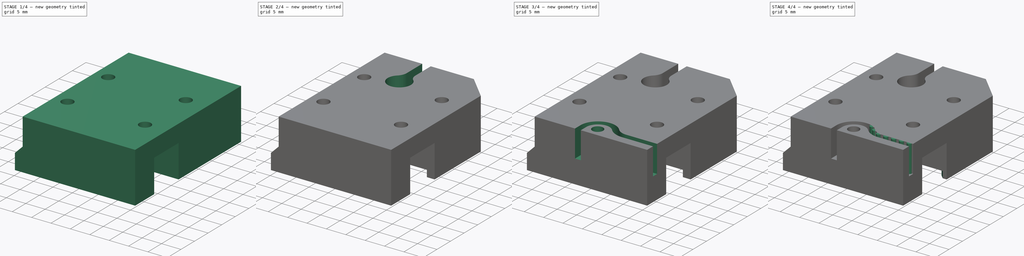
[diagram: build sequence overview — one tinted view per stage of 4, left to right]
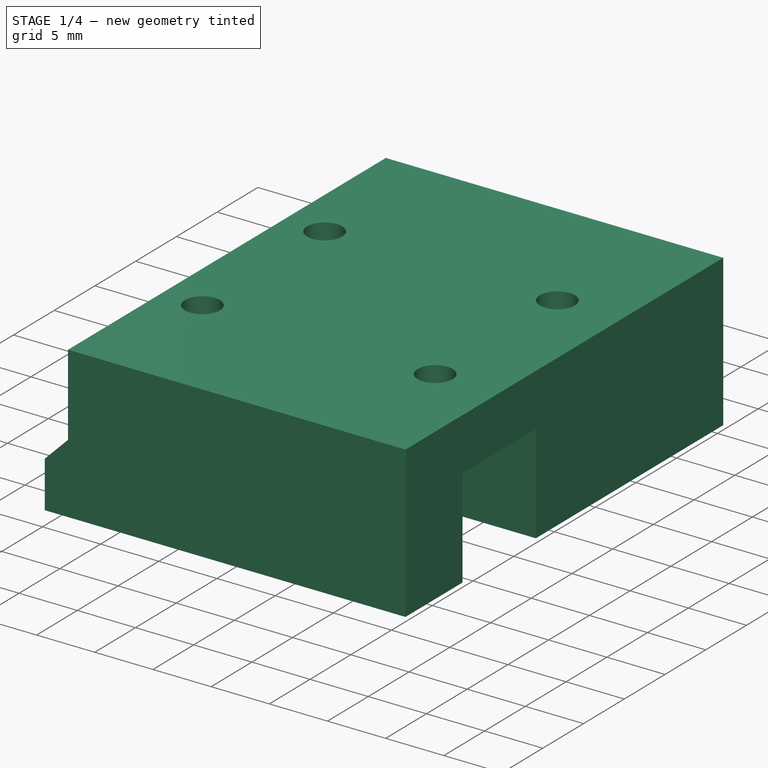
[diagram: stage 1 of 4 — iso view after this stage's code; geometry added in this stage tinted green]
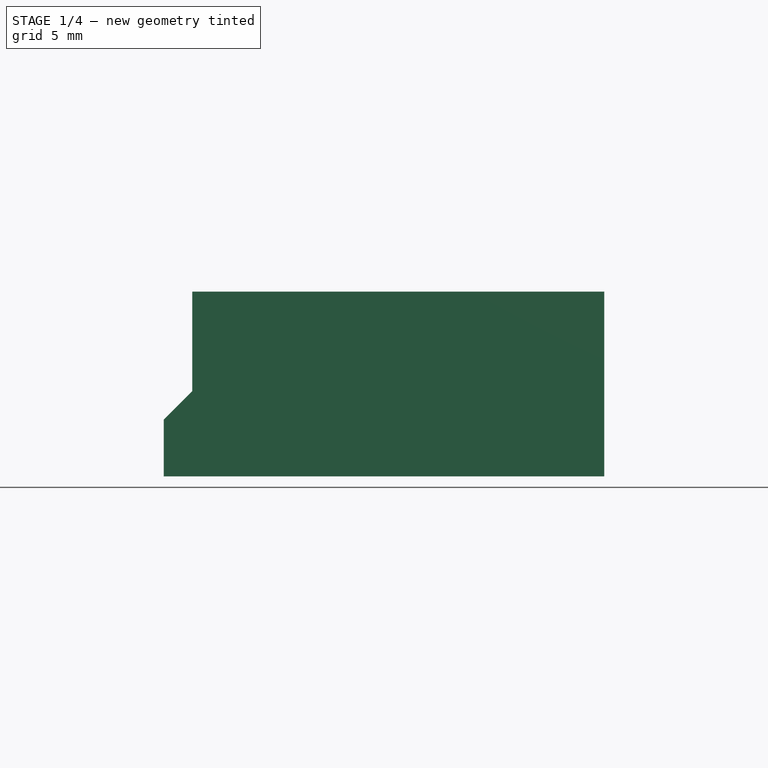
[diagram: stage 1 of 4 — front view after this stage's code; geometry added in this stage tinted green]
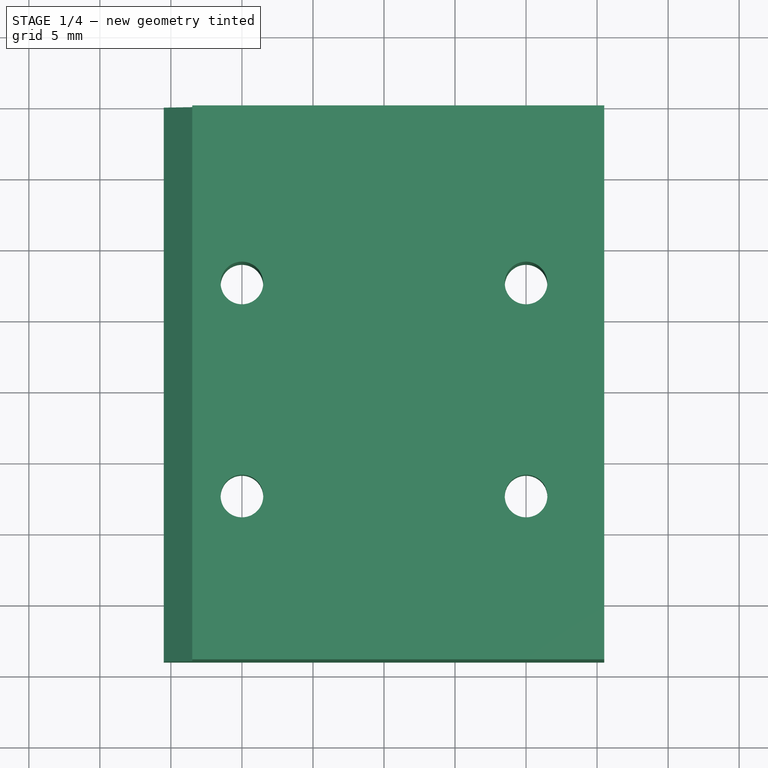
[diagram: stage 1 of 4 — top view after this stage's code; geometry added in this stage tinted green]
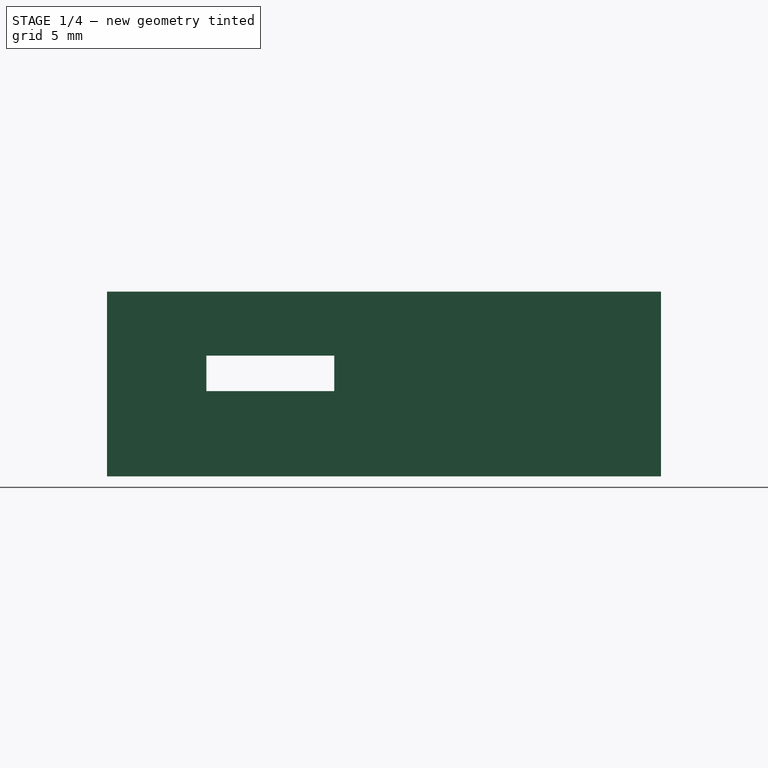
[diagram: stage 1 of 4 — right view after this stage's code; geometry added in this stage tinted green]
FCSTD DOCUMENT  (FreeCAD 0.19R)
Label: Yjoint_bolted
License: All rights reserved
LicenseURL: http://en.wikipedia.org/wiki/All_rights_reserved
objects: Sketcher::SketchObject×13, PartDesign::Pocket×10, PartDesign::Pad×3, PartDesign::Chamfer×1, PartDesign::Body×1
note: 42 computed .brp shape members not serialized (recipe doc carries the construction recipe); baked Part::Feature solids carry a one-line shape summary decoded from their .brp

FEATURE [Sketcher::SketchObject] Sketch
  FullyConstrained = false
  MapMode = 5
  Support = -> [XY_Plane]
  sketch-geometry (9):
    g0: LineSegment StartX=-15.5 StartY=20 StartZ=0 EndX=15.5 EndY=20 EndZ=0
    g1: LineSegment StartX=15.5 StartY=20 StartZ=0 EndX=15.5 EndY=-19 EndZ=0
    g2: LineSegment StartX=15.5 StartY=-19 StartZ=0 EndX=-15.5 EndY=-19 EndZ=0
    g3: LineSegment StartX=-15.5 StartY=-19 StartZ=0 EndX=-15.5 EndY=20 EndZ=0
    g4: LineSegment StartX=-37.8866 StartY=-3 StartZ=0 EndX=43.1927 EndY=-3 EndZ=0
    g5: LineSegment StartX=43.1927 StartY=-3 StartZ=0 EndX=43.1927 EndY=-12 EndZ=0
    g6: LineSegment StartX=43.1927 StartY=-12 StartZ=0 EndX=-37.8866 EndY=-12 EndZ=0
    g7: LineSegment StartX=-37.8866 StartY=-12 StartZ=0 EndX=-37.8866 EndY=-3 EndZ=0
    g8: LineSegment StartX=-54.8094 StartY=-7.5 StartZ=0 EndX=51.9088 EndY=-7.5 EndZ=0
  constraints (22):
    c: Coincident(g0,g1)
    c: Coincident(g1,g2)
    c: Coincident(g2,g3)
    c: Coincident(g3,g0)
    c: Horizontal(g2)
    c: Vertical(g1)
    c: Vertical(g3)
    c: Distance(g2) = 31
    c: Coincident(g4,g5)
    c: Coincident(g5,g6)
    c: Coincident(g6,g7)
    c: Coincident(g7,g4)
    c: Horizontal(g4)
    c: Horizontal(g6)
    c: Vertical(g5)
    c: Vertical(g7)
    c: Symmetric(g5,g4,g8)
    c: DistanceY(g8) = -7.5
    c: Distance(g5) = 9
    c: Distance(g0,g4) = 23
    c: Symmetric(g0,g0,g-2)
    c: DistanceY(g1) = -19
FEATURE [PartDesign::Pad] Pad
  Direction = (1,1,1)
  Length = 13
  Length2 = 100
  Profile = -> Sketch
  Type = 0
FEATURE [Sketcher::SketchObject] Sketch001  label="beltreleif"
  FullyConstrained = false
  MapMode = 5
  Placement = pos=(0,-19,0) rot=(1,0,0;1.5708rad)
  Support = -> [Pad]
  sketch-geometry (3):
    g0: LineSegment StartX=-23.4183 StartY=-3.91832 StartZ=0 EndX=-13.5 EndY=6 EndZ=0
    g1: LineSegment StartX=-13.5 StartY=6 StartZ=0 EndX=-13.5 EndY=30.99 EndZ=0
    g2: LineSegment StartX=-13.5 StartY=30.99 StartZ=0 EndX=-23.4183 EndY=-3.91832 EndZ=0
  constraints (8):
    c: Coincident(g0,g1)
    c: Vertical(g1)
    c: Coincident(g1,g2)
    c: Coincident(g2,g0)
    c: Angle(g0) = 0.785398
    c: DistanceX(g0) = -13.5
    c: Distance(g2) = 36.29
    c: DistanceY(g0) = 6
FEATURE [PartDesign::Pocket] Pocket
  BaseFeature = -> Pad
  Length = 5
  Length2 = 100
  Profile = -> Sketch001
  Type = 1
FEATURE [Sketcher::SketchObject] Sketch002  label="RailPocket"
  FullyConstrained = false
  MapMode = 5
  Placement = pos=(15.5,0,0) rot=(0.57735,0.57735,0.57735;2.0944rad)
  Support = -> [Pocket]
  sketch-geometry (5):
    g0: LineSegment StartX=-12 StartY=8.5 StartZ=0 EndX=-3 EndY=8.5 EndZ=0
    g1: LineSegment StartX=-3 StartY=8.5 StartZ=0 EndX=-3 EndY=-7.81784 EndZ=0
    g2: LineSegment StartX=-3 StartY=-7.81784 StartZ=0 EndX=-12 EndY=-7.81784 EndZ=0
    g3: LineSegment StartX=-12 StartY=-7.81784 StartZ=0 EndX=-12 EndY=8.5 EndZ=0
    g4: LineSegment StartX=-7.5 StartY=9.53875 StartZ=0 EndX=-7.5 EndY=-20.3605 EndZ=0
  constraints (12):
    c: Coincident(g0,g1)
    c: Coincident(g1,g2)
    c: Coincident(g2,g3)
    c: Coincident(g3,g0)
    c: Horizontal(g0)
    c: Horizontal(g2)
    c: Vertical(g1)
    c: Vertical(g3)
    c: Distance(g0) = 9
    c: Symmetric(g0,g0,g4)
    c: DistanceX(g4) = -7.5
    c: DistanceY(g0) = 8.5
FEATURE [PartDesign::Pocket] Pocket001
  BaseFeature = -> Pocket
  Length = 29
  Length2 = 100
  Profile = -> Sketch002
  Type = 0
FEATURE [Sketcher::SketchObject] Sketch003  label="CarriageBolts"
  FullyConstrained = true
  MapMode = 5
  Placement = pos=(0,0,13) rot=(0,0,1;0rad)
  Support = -> [Pocket001]
  sketch-geometry (4):
    g0: Circle CenterX=10 CenterY=7.5 CenterZ=0 NormalX=0 NormalY=0 NormalZ=1 AngleXU=0 Radius=1.5
    g1: Circle CenterX=-10 CenterY=7.5 CenterZ=0 NormalX=0 NormalY=0 NormalZ=1 AngleXU=0 Radius=1.5
    g2: Circle CenterX=-10 CenterY=-7.5 CenterZ=0 NormalX=0 NormalY=0 NormalZ=1 AngleXU=0 Radius=1.5
    g3: Circle CenterX=10 CenterY=-7.5 CenterZ=0 NormalX=0 NormalY=0 NormalZ=1 AngleXU=0 Radius=1.5
  constraints (9):
    c: DistanceY(g0) = 7.5
    c: DistanceX(g0) = 10
    c: Symmetric(g1,g0,g-2)
    c: Symmetric(g0,g2,g-1)
    c: Symmetric(g1,g3,g-1)
    c: Diameter(g0) = 3
    c: Equal(g0,g1)
    c: Equal(g0,g2)
    c: Equal(g0,g3)
FEATURE [PartDesign::Pocket] Pocket002
  BaseFeature = -> Pocket001
  Length = 5
  Length2 = 100
  Profile = -> Sketch003
  Type = 1
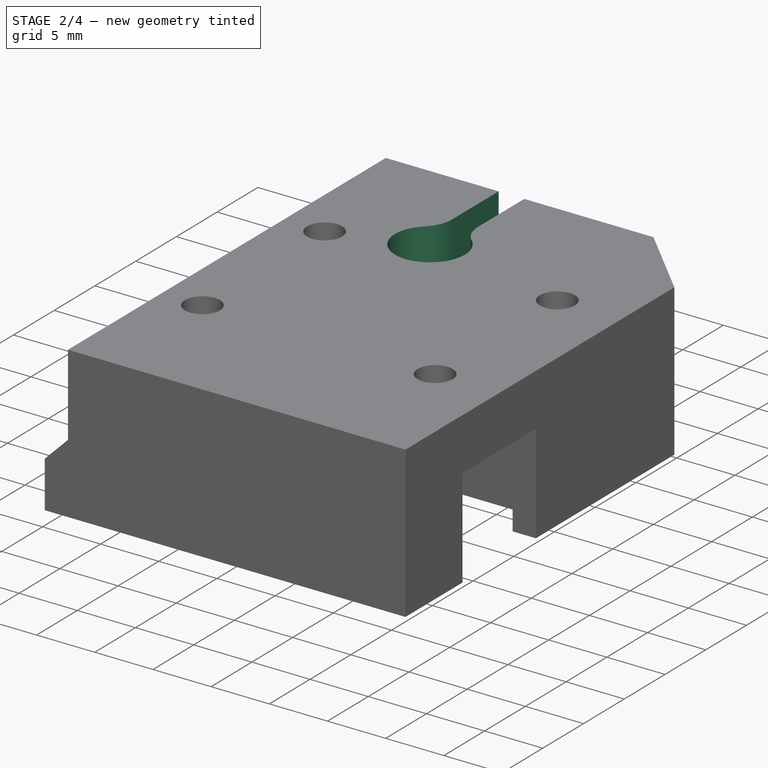
[diagram: stage 2 of 4 — iso view after this stage's code; geometry added in this stage tinted green]
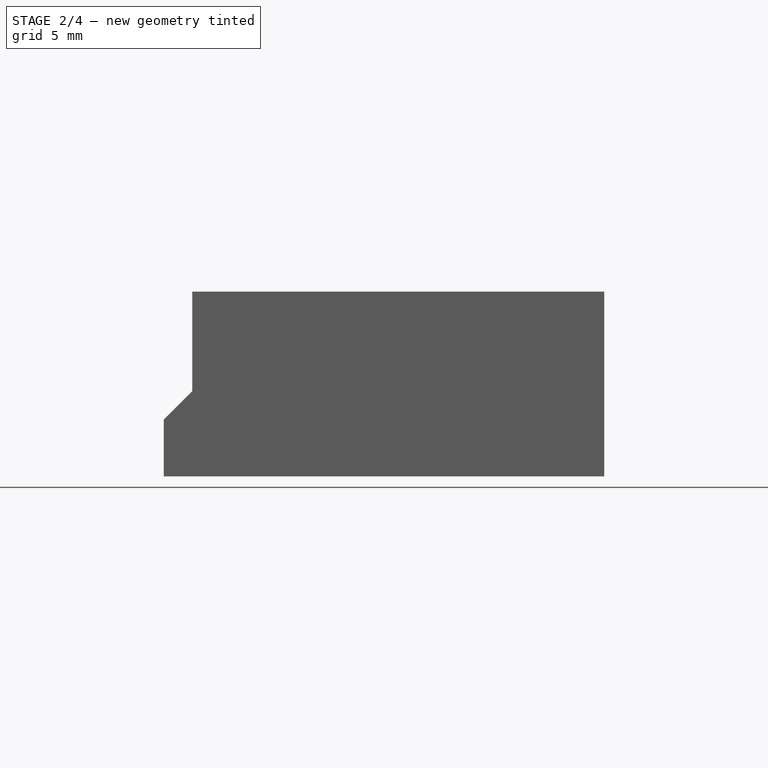
[diagram: stage 2 of 4 — front view after this stage's code; geometry added in this stage tinted green]
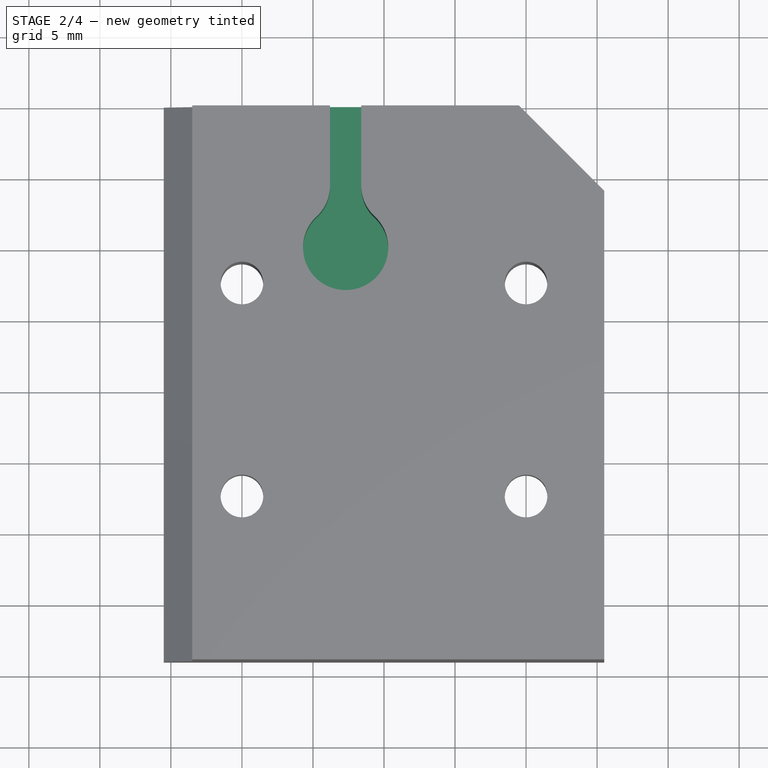
[diagram: stage 2 of 4 — top view after this stage's code; geometry added in this stage tinted green]
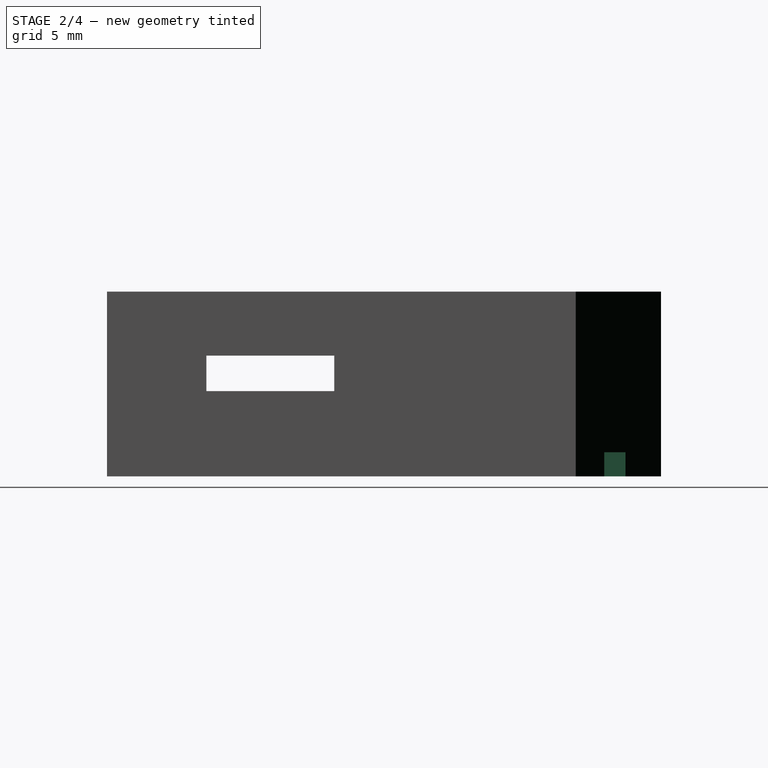
[diagram: stage 2 of 4 — right view after this stage's code; geometry added in this stage tinted green]
FEATURE [Sketcher::SketchObject] Sketch004  label="MotorSideBeltClamp"
  FullyConstrained = false
  MapMode = 5
  Placement = pos=(0,0,13) rot=(0,0,1;0rad)
  Support = -> [Pocket002]
  sketch-geometry (13):
    g0: LineSegment StartX=-3.8 StartY=-19.337 StartZ=0 EndX=-3.8 EndY=-36 EndZ=0
    g1: LineSegment StartX=-3.8 StartY=-36 StartZ=0 EndX=-1.6 EndY=-36 EndZ=0
    g2: LineSegment StartX=-1.6 StartY=-36 StartZ=0 EndX=-1.6 EndY=-19.337 EndZ=0
    g3: ArcOfCircle CenterX=-2.7 CenterY=-15 CenterZ=0 NormalX=0 NormalY=0 NormalZ=1 AngleXU=0 Radius=3 StartAngle=5.45738 EndAngle=10.2506
    g4: ArcOfCircle CenterX=1.3 CenterY=-19.337 CenterZ=0 NormalX=0 NormalY=0 NormalZ=1 AngleXU=0 Radius=2.9 StartAngle=2.31579 EndAngle=3.14159
    g5: ArcOfCircle CenterX=-6.7 CenterY=-19.337 CenterZ=0 NormalX=0 NormalY=0 NormalZ=1 AngleXU=0 Radius=2.9 StartAngle=6e-16 EndAngle=0.825804
    g6: LineSegment StartX=-2.7 StartY=-15 StartZ=0 EndX=-2.7 EndY=-40.8271 EndZ=0
    g7: LineSegment StartX=-3.8 StartY=23.44 StartZ=0 EndX=-1.6 EndY=23.44 EndZ=0
    g8: LineSegment StartX=-1.6 StartY=23.44 StartZ=0 EndX=-1.6 EndY=14.337 EndZ=0
    g9: LineSegment StartX=-3.8 StartY=23.44 StartZ=0 EndX=-3.8 EndY=14.337 EndZ=0
    g10: ArcOfCircle CenterX=-2.7 CenterY=10 CenterZ=0 NormalX=0 NormalY=0 NormalZ=1 AngleXU=0 Radius=3 StartAngle=2.31579 EndAngle=7.10899
    g11: ArcOfCircle CenterX=1.3 CenterY=14.337 CenterZ=0 NormalX=0 NormalY=0 NormalZ=1 AngleXU=0 Radius=2.9 StartAngle=3.14159 EndAngle=3.9674
    g12: ArcOfCircle CenterX=-6.7 CenterY=14.337 CenterZ=0 NormalX=0 NormalY=0 NormalZ=1 AngleXU=0 Radius=2.9 StartAngle=5.45738 EndAngle=6.28319
  constraints (32):
    c: Vertical(g0)
    c: Coincident(g0,g1)
    c: Horizontal(g1)
    c: Coincident(g1,g2)
    c: Tangent(g4,g3) = 1.5708
    c: Tangent(g4,g2) = 1.5708
    c: Tangent(g5,g3) = 1.5708
    c: Tangent(g5,g0) = 1.5708
    c: Coincident(g6,g3)
    c: Symmetric(g1,g0,g6)
    c: Symmetric(g2,g0,g6)
    c: DistanceX(g3) = -2.7
    c: Diameter(g3) = 6
    c: Distance(g4,g5) = 8
    c: Distance(g1) = 2.2
    c: DistanceY(g3) = -15
    c: DistanceY(g1) = -36
    c: Coincident(g7,g8)
    c: Vertical(g8)
    c: Coincident(g7,g9)
    c: Tangent(g11,g10) = 1.5708
    c: Diameter(g10) = 6
    c: Tangent(g11,g8) = -1.5708
    c: Tangent(g12,g10) = 1.5708
    c: Tangent(g12,g9) = 1.5708
    c: Symmetric(g7,g7,g6)
    c: Distance(g7) = 2.2
    c: PointOnObject(g10,g6)
    c: Symmetric(g8,g9,g6)
    c: Distance(g11,g12) = 8
    c: DistanceY(g10) = 10
    c: DistanceY(g7) = 23.44
FEATURE [PartDesign::Pocket] Pocket003
  BaseFeature = -> Pocket002
  Length = 7
  Length2 = 100
  Profile = -> Sketch004
  Type = 0
FEATURE [Sketcher::SketchObject] Sketch005  label="BottomPocket"
  FullyConstrained = true
  MapMode = 5
  Placement = pos=(0,0,0) rot=(1,0,0;3.14159rad)
  Support = -> [Pocket003]
  sketch-geometry (4):
    g0: LineSegment StartX=-13.5 StartY=17.5 StartZ=0 EndX=13.5 EndY=17.5 EndZ=0
    g1: LineSegment StartX=13.5 StartY=17.5 StartZ=0 EndX=13.5 EndY=-17.5 EndZ=0
    g2: LineSegment StartX=13.5 StartY=-17.5 StartZ=0 EndX=-13.5 EndY=-17.5 EndZ=0
    g3: LineSegment StartX=-13.5 StartY=-17.5 StartZ=0 EndX=-13.5 EndY=17.5 EndZ=0
  constraints (11):
    c: Coincident(g0,g1)
    c: Coincident(g1,g2)
    c: Coincident(g2,g3)
    c: Coincident(g3,g0)
    c: Horizontal(g2)
    c: Vertical(g1)
    c: Vertical(g3)
    c: Distance(g0) = 27
    c: Distance(g1) = 35
    c: Symmetric(g0,g2,g-1)
    c: Horizontal(g0)
FEATURE [PartDesign::Pocket] Pocket004
  BaseFeature = -> Pocket003
  Length = 1.7
  Length2 = 100
  Profile = -> Sketch005
  Type = 0
FEATURE [Sketcher::SketchObject] Sketch006  label="CornerClip"
  FullyConstrained = false
  MapMode = 5
  Placement = pos=(0,0,13) rot=(0,0,1;0rad)
  Support = -> [Pocket004]
  sketch-geometry (3):
    g0: LineSegment StartX=1.95516 StartY=27.5448 StartZ=0 EndX=15.5 EndY=14 EndZ=0
    g1: LineSegment StartX=15.5 StartY=14 StartZ=0 EndX=15.5 EndY=27.5448 EndZ=0
    g2: LineSegment StartX=15.5 StartY=27.5448 StartZ=0 EndX=1.95516 EndY=27.5448 EndZ=0
  constraints (8):
    c: Coincident(g0,g1)
    c: Vertical(g1)
    c: Coincident(g1,g2)
    c: Horizontal(g2)
    c: Coincident(g0,g2)
    c: Angle(g0) = -0.785398
    c: DistanceX(g0) = 15.5
    c: DistanceY(g0) = 14
FEATURE [PartDesign::Pocket] Pocket005
  BaseFeature = -> Pocket004
  Length = 5
  Length2 = 100
  Profile = -> Sketch006
  Type = 1
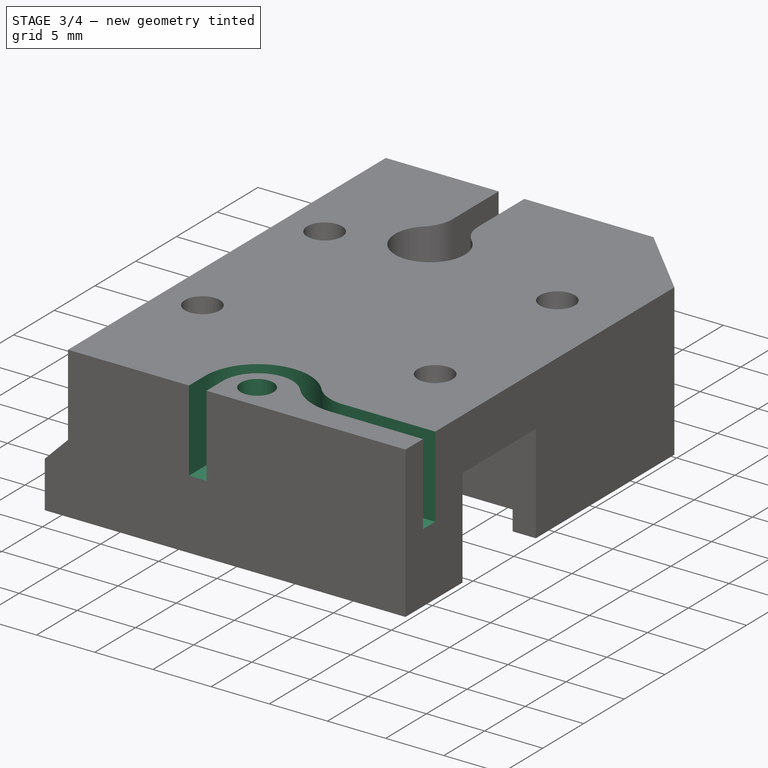
[diagram: stage 3 of 4 — iso view after this stage's code; geometry added in this stage tinted green]
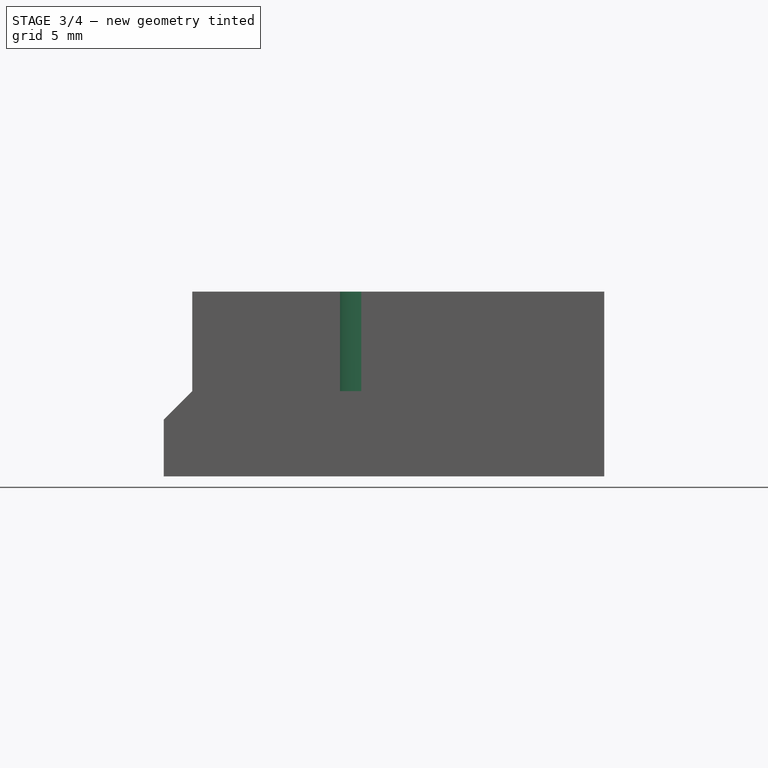
[diagram: stage 3 of 4 — front view after this stage's code; geometry added in this stage tinted green]
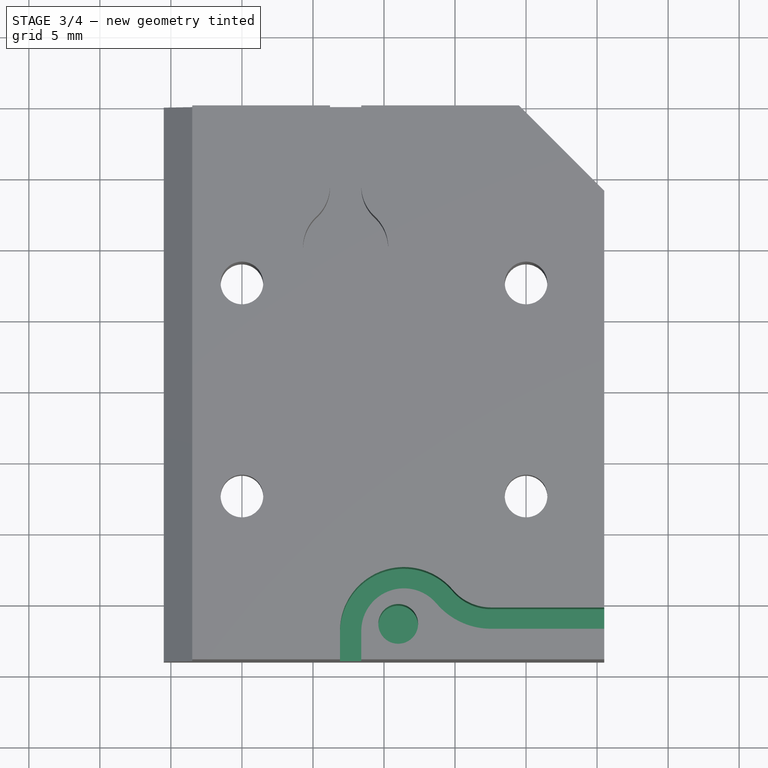
[diagram: stage 3 of 4 — top view after this stage's code; geometry added in this stage tinted green]
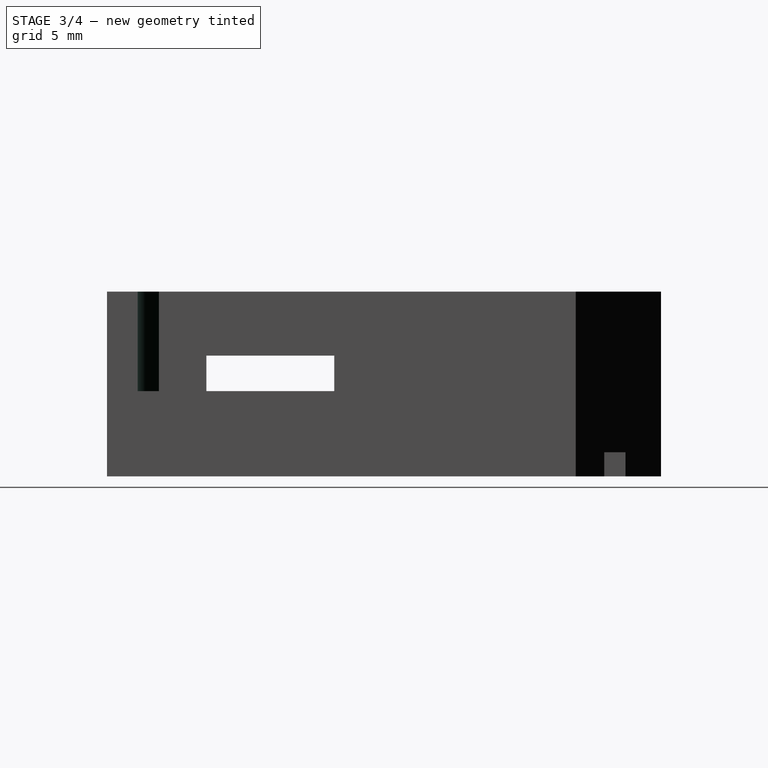
[diagram: stage 3 of 4 — right view after this stage's code; geometry added in this stage tinted green]
FEATURE [Sketcher::SketchObject] Sketch007  label="clampHole"
  ExternalGeometry = -> [Pocket005]
  FullyConstrained = false
  MapMode = 5
  Placement = pos=(0,0,13) rot=(0,0,1;0rad)
  Support = -> [Pocket005]
  sketch-geometry (2):
    g0: Circle CenterX=-2.63724 CenterY=9.92805 CenterZ=0 NormalX=0 NormalY=0 NormalZ=1 AngleXU=0 Radius=1.4
    g1: Circle CenterX=1 CenterY=-16.5 CenterZ=0 NormalX=0 NormalY=0 NormalZ=1 AngleXU=0 Radius=1.4
  constraints (4):
    c: Diameter(g0) = 2.8
    c: Diameter(g1) = 2.8
    c: DistanceY(g1) = -16.5
    c: DistanceX(g1) = 1
FEATURE [Sketcher::SketchObject] Sketch008  label="printFilm"
  FullyConstrained = false
  MapMode = 5
  Placement = pos=(0,0,6) rot=(0,0,1;0rad)
  sketch-geometry (8):
    g0: LineSegment StartX=-7.42355 StartY=14.214 StartZ=0 EndX=2.97442 EndY=14.214 EndZ=0
    g1: LineSegment StartX=2.97442 StartY=14.214 StartZ=0 EndX=2.97442 EndY=6.02841 EndZ=0
    g2: LineSegment StartX=2.97442 StartY=6.02841 StartZ=0 EndX=-7.42355 EndY=6.02841 EndZ=0
    g3: LineSegment StartX=-7.42355 StartY=6.02841 StartZ=0 EndX=-7.42355 EndY=14.214 EndZ=0
    g4: LineSegment StartX=-5.71547 StartY=-12.14 StartZ=0 EndX=6.63722 EndY=-12.14 EndZ=0
    g5: LineSegment StartX=6.63722 StartY=-12.14 StartZ=0 EndX=6.63722 EndY=-18.9745 EndZ=0
    g6: LineSegment StartX=6.63722 StartY=-18.9745 StartZ=0 EndX=-5.71547 EndY=-18.9745 EndZ=0
    g7: LineSegment StartX=-5.71547 StartY=-18.9745 StartZ=0 EndX=-5.71547 EndY=-12.14 EndZ=0
  constraints (16):
    c: Coincident(g0,g1)
    c: Coincident(g1,g2)
    c: Coincident(g2,g3)
    c: Coincident(g3,g0)
    c: Horizontal(g0)
    c: Horizontal(g2)
    c: Vertical(g1)
    c: Vertical(g3)
    c: Coincident(g4,g5)
    c: Coincident(g5,g6)
    c: Coincident(g6,g7)
    c: Coincident(g7,g4)
    c: Horizontal(g4)
    c: Horizontal(g6)
    c: Vertical(g5)
    c: Vertical(g7)
FEATURE [Sketcher::SketchObject] Sketch009  label="BeltTrap1"
  FullyConstrained = true
  MapMode = 5
  Placement = pos=(0,0,13) rot=(0,0,1;0rad)
  sketch-geometry (12):
    g0: ArcOfCircle CenterX=1.4 CenterY=-17 CenterZ=0 NormalX=0 NormalY=0 NormalZ=1 AngleXU=0 Radius=3 StartAngle=0.70304 EndAngle=3.14159
    g1: ArcOfCircle CenterX=1.4 CenterY=-17 CenterZ=0 NormalX=0 NormalY=0 NormalZ=1 AngleXU=0 Radius=4.5 StartAngle=0.70304 EndAngle=3.14159
    g2: LineSegment StartX=-3.1 StartY=-17 StartZ=0 EndX=-1.6 EndY=-17 EndZ=0
    g3: LineSegment StartX=-1.6 StartY=-17 StartZ=0 EndX=-1.6 EndY=-20.87 EndZ=0
    g4: LineSegment StartX=-1.6 StartY=-20.87 StartZ=0 EndX=-3.1 EndY=-20.87 EndZ=0
    g5: LineSegment StartX=-3.1 StartY=-20.87 StartZ=0 EndX=-3.1 EndY=-17 EndZ=0
    g6: LineSegment StartX=-4.78 StartY=-17 StartZ=0 EndX=6 EndY=-17 EndZ=0
    g7: ArcOfCircle CenterX=7.5411 CenterY=-11.7954 CenterZ=0 NormalX=0 NormalY=0 NormalZ=1 AngleXU=0 Radius=3.54989 StartAngle=3.84463 EndAngle=4.71239
    g8: ArcOfCircle CenterX=7.5411 CenterY=-11.7954 CenterZ=0 NormalX=0 NormalY=0 NormalZ=1 AngleXU=0 Radius=5.04989 StartAngle=3.84463 EndAngle=4.71239
    g9: LineSegment StartX=21.71 StartY=-15.3453 StartZ=0 EndX=7.5411 EndY=-15.3453 EndZ=0
    g10: LineSegment StartX=21.71 StartY=-16.8453 StartZ=0 EndX=7.5411 EndY=-16.8453 EndZ=0
    g11: LineSegment StartX=21.71 StartY=-15.3453 StartZ=0 EndX=21.71 EndY=-16.8453 EndZ=0
  constraints (34):
    c: Coincident(g1,g0)
    c: Distance(g0,g0) = 3
    c: DistanceX(g0) = 1.4
    c: Coincident(g2,g1)
    c: Coincident(g2,g0)
    c: Tangent(g0,g3) = -1.5708
    c: Coincident(g3,g4)
    c: Horizontal(g4)
    c: Coincident(g4,g5)
    c: Coincident(g5,g1)
    c: Vertical(g5)
    c: Distance(g4) = 1.5
    c: Distance(g3) = 3.87
    c: Horizontal(g6)
    c: PointOnObject(g0,g6)
    c: PointOnObject(g1,g6)
    c: Parallel(g3,g5)
    c: DistanceY(g6) = -17
    c: Distance(g6) = 10.78
    c: DistanceX(g6) = -4.78
    c: Coincident(g8,g7)
    c: Tangent(g7,g1) = 1.5708
    c: Tangent(g8,g0) = 1.5708
    c: Tangent(g7,g9) = 1.5708
    c: Coincident(g7,g9)
    c: Tangent(g8,g10) = 1.5708
    c: Parallel(g10,g9)
    c: Horizontal(g9)
    c: Coincident(g11,g9)
    c: Coincident(g11,g10)
    c: Vertical(g11)
    c: DistanceX(g9) = 21.71
    c: DistanceX(g8) = 7.5411
    c: DistanceY(g8) = -16.8453
FEATURE [Sketcher::SketchObject] Sketch010
  FullyConstrained = false
  MapMode = 5
  Placement = pos=(0,0,13) rot=(0,0,1;0rad)
  sketch-geometry (7):
    g0: Circle CenterX=3.32107 CenterY=-12.918 CenterZ=0 NormalX=0 NormalY=0 NormalZ=1 AngleXU=0 Radius=0.625
    g1: Circle CenterX=4.888 CenterY=-14.1609 CenterZ=0 NormalX=0 NormalY=0 NormalZ=1 AngleXU=0 Radius=0.625
    g2: Circle CenterX=6.58573 CenterY=-15.2181 CenterZ=0 NormalX=0 NormalY=0 NormalZ=1 AngleXU=0 Radius=0.625
    g3: Circle CenterX=8.58033 CenterY=-15.3649 CenterZ=0 NormalX=0 NormalY=0 NormalZ=1 AngleXU=0 Radius=0.625
    g4: Circle CenterX=10.5802 CenterY=-15.3436 CenterZ=0 NormalX=0 NormalY=0 NormalZ=1 AngleXU=0 Radius=0.625
    g5: Circle CenterX=12.58 CenterY=-15.3146 CenterZ=0 NormalX=0 NormalY=0 NormalZ=1 AngleXU=0 Radius=0.625
    g6: Circle CenterX=14.58 CenterY=-15.3184 CenterZ=0 NormalX=0 NormalY=0 NormalZ=1 AngleXU=0 Radius=0.625
  constraints (10):
    c: Distance(g0,g1) = 2
    c: Distance(g1,g2) = 2
    c: Distance(g2,g3) = 2
    c: Distance(g4,g5) = 2
    c: Distance(g4,g3) = 2
    c: Distance(g6,g5) = 2
    c: DistanceX(g6) = 14.58
    c: Diameter(g6) = 1.25
    c: Diameter(g0) = 1.25
    c: Equal(g0, g1-g5) x5
FEATURE [PartDesign::Pocket] Pocket006
  BaseFeature = -> Pocket005
  Length = 5
  Length2 = 100
  Profile = -> Sketch007
  Type = 1
FEATURE [PartDesign::Pad] Pad001
  BaseFeature = -> Pocket006
  Direction = (1,1,1)
  Length = 0.2
  Length2 = 100
  Profile = -> Sketch008
  Reversed = true
  Type = 0
FEATURE [PartDesign::Pocket] Pocket007
  BaseFeature = -> Pad001
  Length = 7
  Length2 = 100
  Profile = -> Sketch009
  Type = 0
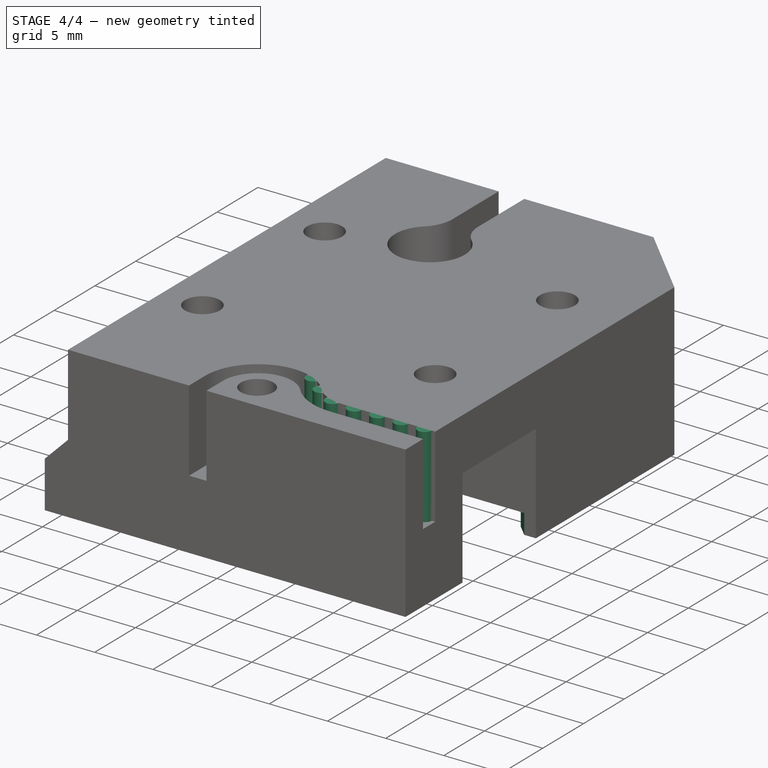
[diagram: stage 4 of 4 — iso view after this stage's code; geometry added in this stage tinted green]
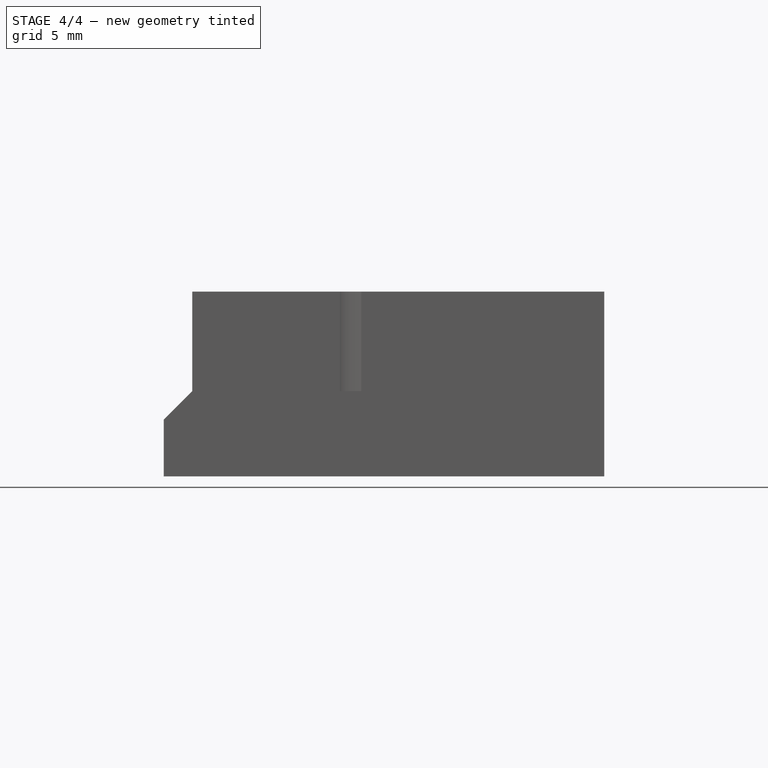
[diagram: stage 4 of 4 — front view after this stage's code; geometry added in this stage tinted green]
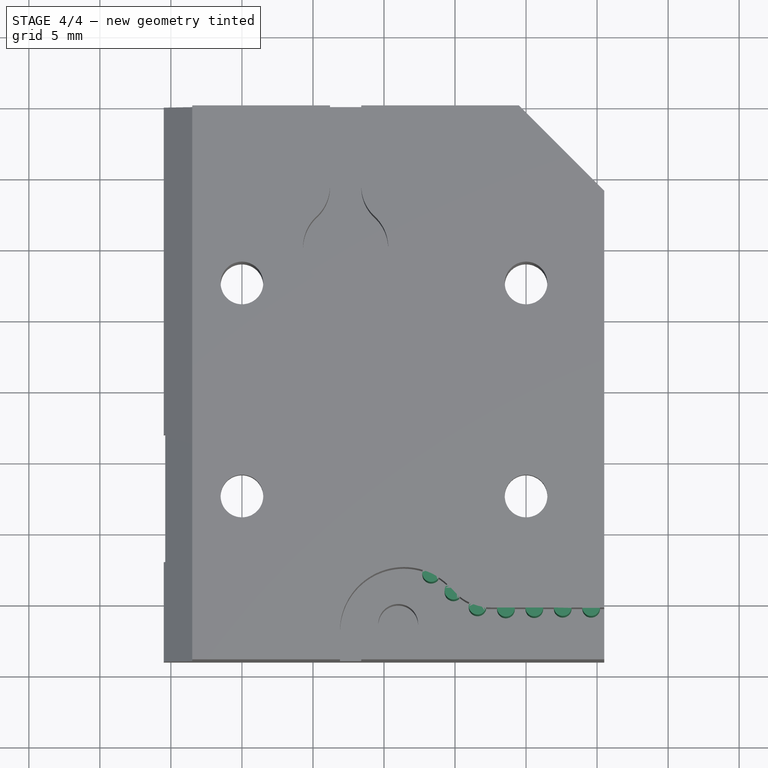
[diagram: stage 4 of 4 — top view after this stage's code; geometry added in this stage tinted green]
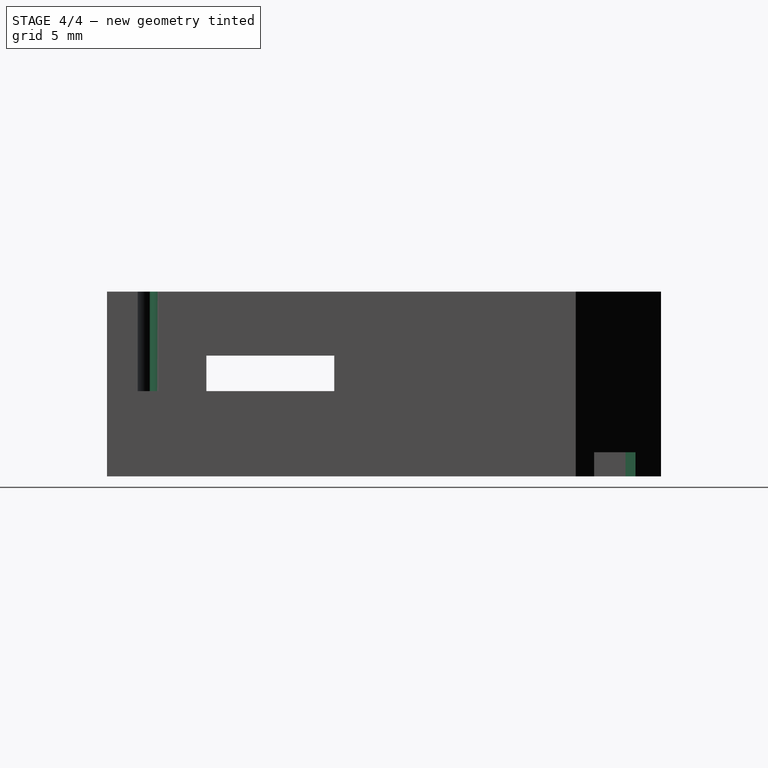
[diagram: stage 4 of 4 — right view after this stage's code; geometry added in this stage tinted green]
FEATURE [PartDesign::Pad] Pad002
  BaseFeature = -> Pocket007
  Direction = (1,1,1)
  Length = 8
  Length2 = 100
  Profile = -> Sketch010
  Reversed = true
  Type = 0
FEATURE [Sketcher::SketchObject] Sketch011
  FullyConstrained = false
  MapMode = 5
  Placement = pos=(-15.5,0,0) rot=(0.57735,-0.57735,-0.57735;2.0944rad)
  Support = -> [Pad002]
  sketch-geometry (4):
    g0: LineSegment StartX=3 StartY=8.5 StartZ=0 EndX=12 EndY=8.5 EndZ=0
    g1: LineSegment StartX=12 StartY=8.5 StartZ=0 EndX=12 EndY=-1.2366 EndZ=0
    g2: LineSegment StartX=12 StartY=-1.2366 StartZ=0 EndX=3 EndY=-1.2366 EndZ=0
    g3: LineSegment StartX=3 StartY=-1.2366 StartZ=0 EndX=3 EndY=8.5 EndZ=0
  constraints (11):
    c: Coincident(g0,g1)
    c: Coincident(g1,g2)
    c: Coincident(g2,g3)
    c: Coincident(g3,g0)
    c: Horizontal(g0)
    c: Horizontal(g2)
    c: Vertical(g1)
    c: Vertical(g3)
    c: DistanceX(g0) = 3
    c: DistanceX(g0) = 12
    c: DistanceY(g0) = 8.5
FEATURE [PartDesign::Pocket] Pocket008
  BaseFeature = -> Pad002
  Length = 0.1
  Length2 = 100
  Profile = -> Sketch011
  Type = 0
FEATURE [Sketcher::SketchObject] Sketch012
  FullyConstrained = true
  MapMode = 5
  Placement = pos=(0,0,8.5) rot=(1,0,0;3.14159rad)
  sketch-geometry (2):
    g0: Circle CenterX=10 CenterY=7.5 CenterZ=0 NormalX=0 NormalY=0 NormalZ=1 AngleXU=0 Radius=3.5
    g1: Circle CenterX=-10 CenterY=7.5 CenterZ=0 NormalX=0 NormalY=0 NormalZ=1 AngleXU=0 Radius=3.5
  constraints (6):
    c: Diameter(g0) = 7
    c: Equal(g0,g1)
    c: DistanceY(g1) = 7.5
    c: DistanceY(g0) = 7.5
    c: DistanceX(g1) = -10
    c: DistanceX(g0) = 10
FEATURE [PartDesign::Pocket] Pocket009
  BaseFeature = -> Pocket008
  Length = 1.5
  Length2 = 100
  Profile = -> Sketch012
  Type = 0
FEATURE [PartDesign::Chamfer] Chamfer
  Angle = 45
  Base = -> Pocket009 [Edge33,Edge31,Edge92,Edge134]
  BaseFeature = -> Pocket009
  ChamferType = 0
  FlipDirection = false
  Size = 1
  Size2 = 1
  SupportTransform = false
FEATURE [PartDesign::Body] Body
  Group = -> [Sketch,Pad,Sketch001,Pocket,Sketch002,Pocket001,Sketch003,Pocket002,Sketch004,Pocket003,Sketch005,Pocket004,Sketch006,Pocket005,Sketch007,Sketch008,Sketch009,Sketch010,Pocket006,Pad001,Pocket007,Pad002,Sketch011,Pocket008,Sketch012,Pocket009,Chamfer]
  Origin = -> Origin
  Tip = -> Chamfer
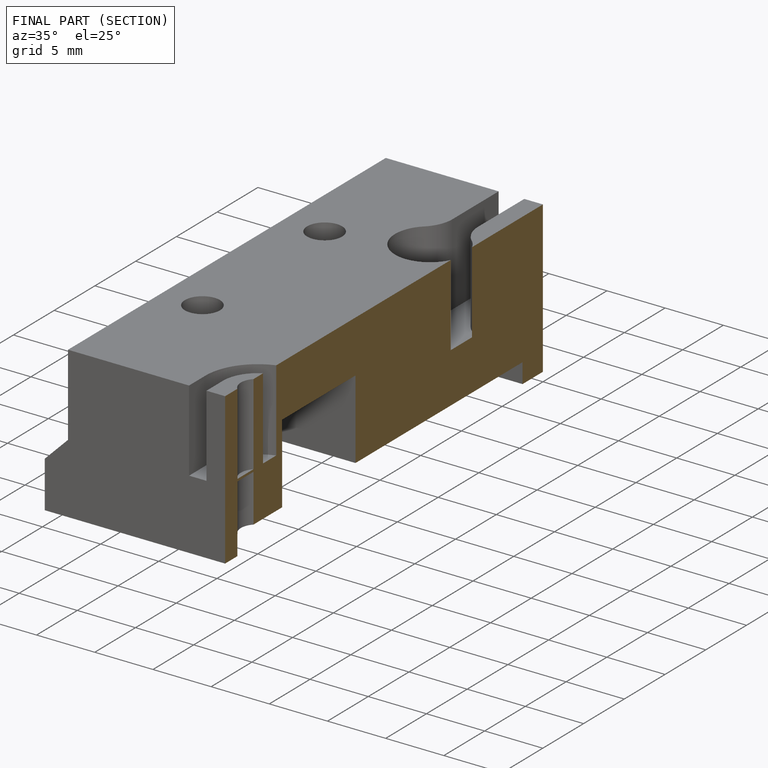
[diagram: finished part — half-section view (interior)]
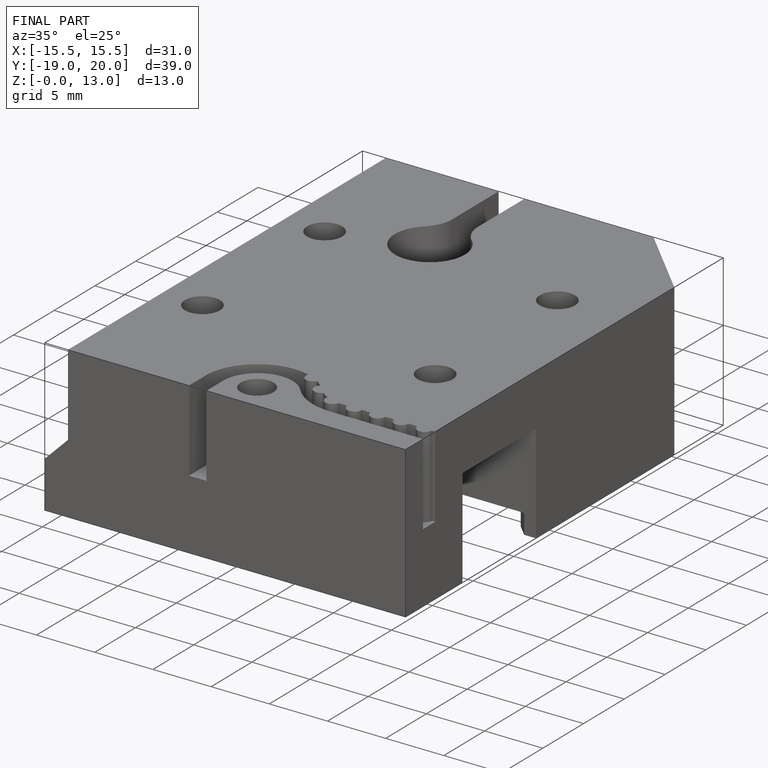
[diagram: finished part — iso view with bounding-box wireframe]
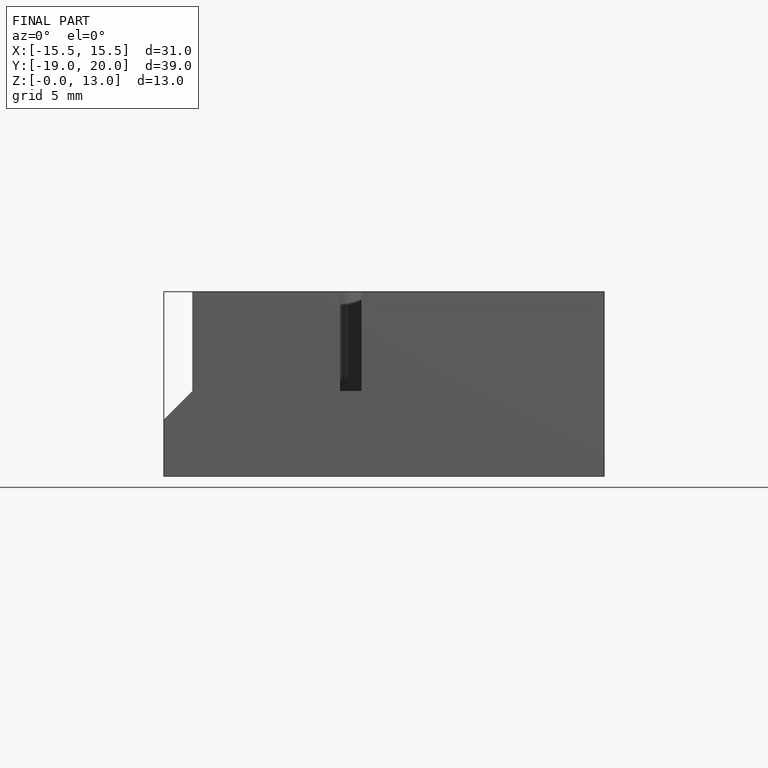
[diagram: finished part — front view with bounding-box wireframe]
